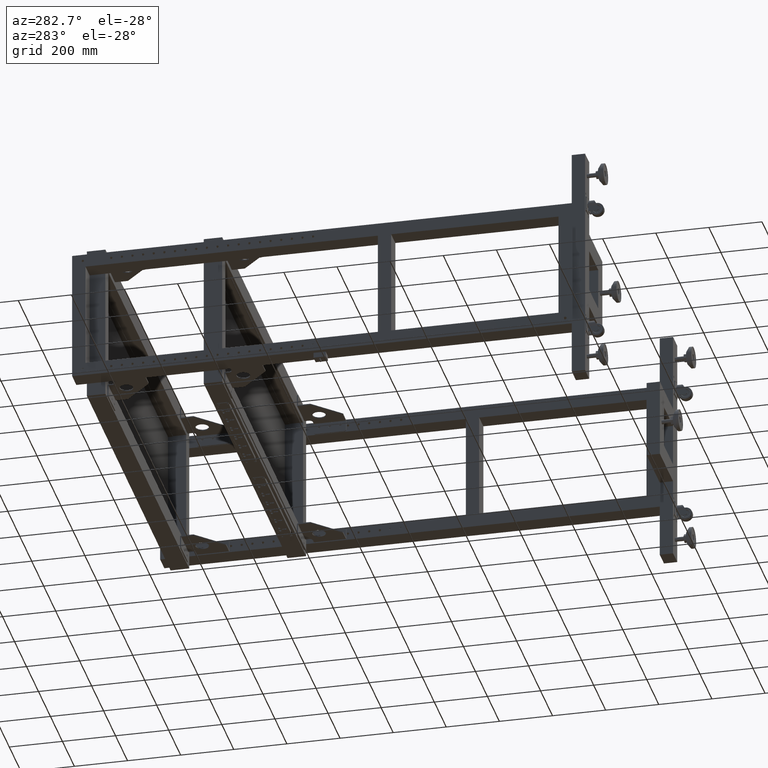
[diagram: clean part render]
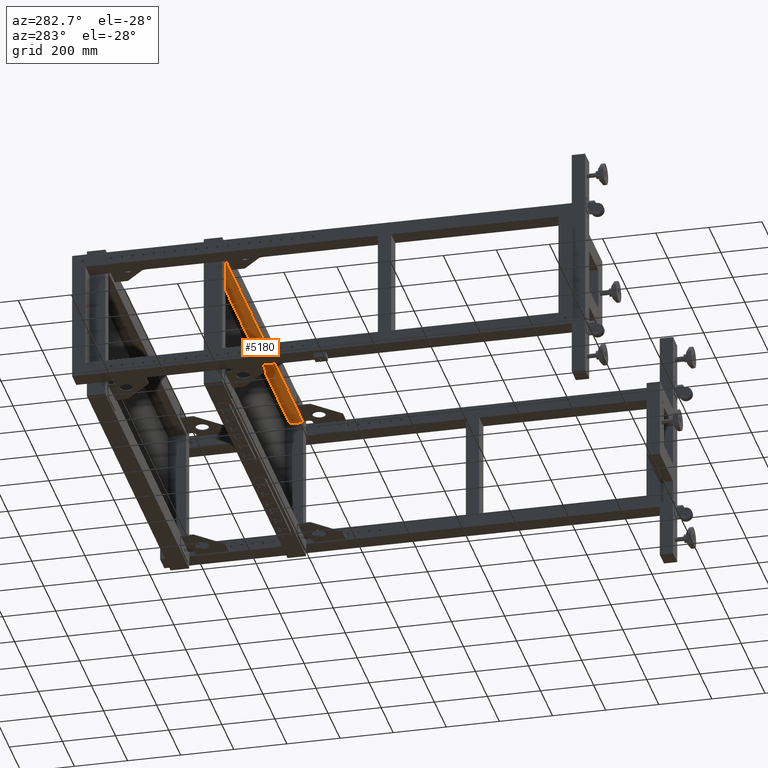
[diagram: same view with one face highlighted and labeled with its STEP entity id]
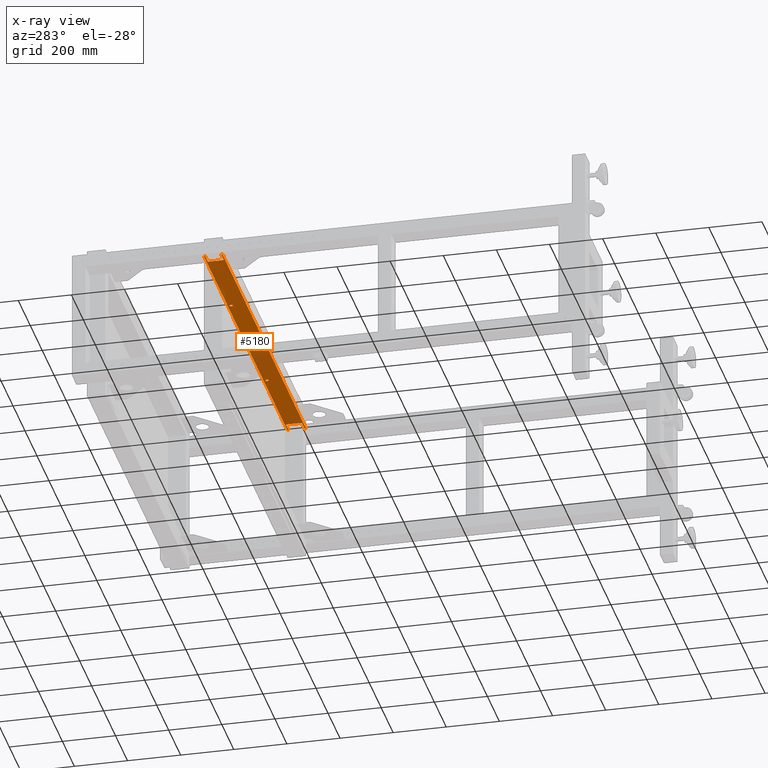
[diagram: x-ray of the same camera — body ghosted, the highlighted face saturated]
A machine part, auxiliary view. The second image highlights one B-rep face of the part: STEP entity #5180.
The next image is the same camera in x-ray: the body ghosted, the highlighted face saturated — about 15% of this face is hidden behind the body in this view.
In plain terms, the highlighted planar face has unit normal (0, -0, 1).
Its self-contained STEP definition (entity closure, byte-faithful):
#490 = VECTOR ( 'NONE', #38025, 1000.000000000000000 ) ;
#723 = VERTEX_POINT ( 'NONE', #52469 ) ;
#1201 = AXIS2_PLACEMENT_3D ( 'NONE', #20201, #44554, #2254 ) ;
#1465 = DIRECTION ( 'NONE',  ( -1.000000000000000000, -3.333709205128412982E-16, -1.864484265141417748E-31 ) ) ;
#1579 = VERTEX_POINT ( 'NONE', #62334 ) ;
#1951 = EDGE_CURVE ( 'NONE', #5114, #77922, #77193, .T. ) ;
#2254 = DIRECTION ( 'NONE',  ( 2.768038506440323819E-16, -1.000000000000000000, -3.396508223080412663E-15 ) ) ;
#2841 = VECTOR ( 'NONE', #71924, 1000.000000000000000 ) ;
#2865 = DIRECTION ( 'NONE',  ( 0.000000000000000000, 1.000000000000000000, 3.396508223080412663E-15 ) ) ;
#3459 = ORIENTED_EDGE ( 'NONE', *, *, #51995, .F. ) ;
#4889 = DIRECTION ( 'NONE',  ( -2.768038506440323819E-16, 1.000000000000000000, 3.396508223080412663E-15 ) ) ;
#5114 = VERTEX_POINT ( 'NONE', #14640 ) ;
#5180 = ADVANCED_FACE ( 'NONE', ( #58489, #75253, #50530 ), #26198, .F. ) ;
#5653 = CIRCLE ( 'NONE', #78266, 6.000000000000005329 ) ;
#6315 = VECTOR ( 'NONE', #1465, 1000.000000000000000 ) ;
#6342 = VERTEX_POINT ( 'NONE', #69790 ) ;
#6767 = CARTESIAN_POINT ( 'NONE',  ( -1266.172487437185964, 486.9410804020109822, 229.9999999999998295 ) ) ;
#7705 = LINE ( 'NONE', #26427, #55182 ) ;
#8242 = LINE ( 'NONE', #42978, #6315 ) ;
#10945 = CARTESIAN_POINT ( 'NONE',  ( -868.1724874371859642, 543.9410804020113801, 230.0000000000000284 ) ) ;
#12197 = ORIENTED_EDGE ( 'NONE', *, *, #39960, .F. ) ;
#12395 = DIRECTION ( 'NONE',  ( 9.401665548927782962E-31, -3.396508223080412663E-15, 1.000000000000000000 ) ) ;
#12981 = EDGE_CURVE ( 'NONE', #51045, #6342, #32813, .T. ) ;
#14173 = VECTOR ( 'NONE', #69640, 1000.000000000000000 ) ;
#14485 = EDGE_CURVE ( 'NONE', #34072, #1579, #5653, .T. ) ;
#14640 = CARTESIAN_POINT ( 'NONE',  ( -268.1724874371842589, 537.9410804020114938, 230.0000000000000284 ) ) ;
#15605 = CARTESIAN_POINT ( 'NONE',  ( -1266.172487437185964, 556.9410804020109254, 230.0000000000000853 ) ) ;
#17342 = VERTEX_POINT ( 'NONE', #32730 ) ;
#17468 = EDGE_CURVE ( 'NONE', #21553, #723, #8242, .T. ) ;
#19708 = EDGE_CURVE ( 'NONE', #40440, #42120, #58283, .T. ) ;
#19843 = CARTESIAN_POINT ( 'NONE',  ( 129.8275125628156559, 551.9410804020112664, 230.0000000000000568 ) ) ;
#20033 = ORIENTED_EDGE ( 'NONE', *, *, #17468, .T. ) ;
#20201 = CARTESIAN_POINT ( 'NONE',  ( -2216.172487437184373, 556.9410804020104706, 230.0000000000000853 ) ) ;
#21553 = VERTEX_POINT ( 'NONE', #19843 ) ;
#22111 = DIRECTION ( 'NONE',  ( 0.000000000000000000, 3.396508223080412663E-15, -1.000000000000000000 ) ) ;
#22618 = CARTESIAN_POINT ( 'NONE',  ( -268.1724874371842589, 549.9410804020113801, 230.0000000000000568 ) ) ;
#23869 = LINE ( 'NONE', #48209, #24054 ) ;
#24054 = VECTOR ( 'NONE', #58617, 1000.000000000000000 ) ;
#26198 = PLANE ( 'NONE',  #1201 ) ;
#26427 = CARTESIAN_POINT ( 'NONE',  ( -1266.172487437185964, 556.9410804020109254, 230.0000000000000853 ) ) ;
#26774 = CARTESIAN_POINT ( 'NONE',  ( -868.1724874371859642, 543.9410804020113801, 230.0000000000000284 ) ) ;
#27121 = DIRECTION ( 'NONE',  ( 1.000000000000000000, 2.768038506440323819E-16, 0.000000000000000000 ) ) ;
#27299 = DIRECTION ( 'NONE',  ( 0.000000000000000000, 1.000000000000000000, 4.625929269271481378E-15 ) ) ;
#28426 = LINE ( 'NONE', #63673, #74709 ) ;
#28719 = ORIENTED_EDGE ( 'NONE', *, *, #49326, .T. ) ;
#29694 = CARTESIAN_POINT ( 'NONE',  ( -1221.172487437186192, 491.9410804020110390, 229.9999999999998579 ) ) ;
#30360 = LINE ( 'NONE', #47578, #2841 ) ;
#31044 = EDGE_CURVE ( 'NONE', #21553, #17342, #28426, .T. ) ;
#31260 = CARTESIAN_POINT ( 'NONE',  ( -1221.172487437186192, 491.9410804020110390, 229.9999999999998579 ) ) ;
#31632 = CIRCLE ( 'NONE', #60989, 6.000000000000005329 ) ;
#32730 = CARTESIAN_POINT ( 'NONE',  ( 129.8275125628156559, 556.9410804020111527, 230.0000000000000853 ) ) ;
#32813 = LINE ( 'NONE', #33220, #64433 ) ;
#32878 = EDGE_CURVE ( 'NONE', #77922, #5114, #31632, .T. ) ;
#33220 = CARTESIAN_POINT ( 'NONE',  ( -2216.172487437184373, 486.9410804020105843, 229.9999999999998295 ) ) ;
#33913 = ORIENTED_EDGE ( 'NONE', *, *, #31044, .F. ) ;
#34072 = VERTEX_POINT ( 'NONE', #76467 ) ;
#34174 = ORIENTED_EDGE ( 'NONE', *, *, #65666, .T. ) ;
#34322 = CARTESIAN_POINT ( 'NONE',  ( 129.8275125628156559, 556.9410804020111527, 230.0000000000000853 ) ) ;
#34759 = ORIENTED_EDGE ( 'NONE', *, *, #12981, .F. ) ;
#35776 = LINE ( 'NONE', #60112, #490 ) ;
#36535 = EDGE_CURVE ( 'NONE', #42120, #17342, #45305, .T. ) ;
#36720 = ORIENTED_EDGE ( 'NONE', *, *, #36535, .T. ) ;
#37148 = CARTESIAN_POINT ( 'NONE',  ( -1266.172487437185964, 551.9410804020110390, 230.0000000000000568 ) ) ;
#37911 = EDGE_CURVE ( 'NONE', #50555, #43037, #55593, .T. ) ;
#38025 = DIRECTION ( 'NONE',  ( 1.000000000000000000, -5.656706986880889162E-17, -1.864484265141417748E-31 ) ) ;
#38413 = ORIENTED_EDGE ( 'NONE', *, *, #46432, .F. ) ;
#38465 = ORIENTED_EDGE ( 'NONE', *, *, #37911, .F. ) ;
#38847 = AXIS2_PLACEMENT_3D ( 'NONE', #10945, #22111, #53606 ) ;
#39106 = LINE ( 'NONE', #76170, #75394 ) ;
#39960 = EDGE_CURVE ( 'NONE', #40440, #50555, #35776, .T. ) ;
#40138 = VERTEX_POINT ( 'NONE', #44402 ) ;
#40440 = VERTEX_POINT ( 'NONE', #37148 ) ;
#42120 = VERTEX_POINT ( 'NONE', #66241 ) ;
#42328 = CARTESIAN_POINT ( 'NONE',  ( -268.1724874371842589, 543.9410804020114938, 230.0000000000000284 ) ) ;
#42545 = VERTEX_POINT ( 'NONE', #48553 ) ;
#42978 = CARTESIAN_POINT ( 'NONE',  ( 130.8275125628155422, 551.9410804020112664, 230.0000000000000568 ) ) ;
#43037 = VERTEX_POINT ( 'NONE', #31260 ) ;
#43640 = ORIENTED_EDGE ( 'NONE', *, *, #14485, .F. ) ;
#44402 = CARTESIAN_POINT ( 'NONE',  ( 84.82751256281572694, 491.9410804020111527, 229.9999999999998579 ) ) ;
#44554 = DIRECTION ( 'NONE',  ( 9.401665548927782962E-31, -3.396508223080412663E-15, 1.000000000000000000 ) ) ;
#45305 = LINE ( 'NONE', #62070, #14173 ) ;
#45527 = DIRECTION ( 'NONE',  ( 0.000000000000000000, 1.000000000000000000, 4.625929269271481378E-15 ) ) ;
#46432 = EDGE_CURVE ( 'NONE', #43037, #67901, #23869, .T. ) ;
#46478 = CIRCLE ( 'NONE', #38847, 6.000000000000005329 ) ;
#47492 = VECTOR ( 'NONE', #55202, 1000.000000000000000 ) ;
#47578 = CARTESIAN_POINT ( 'NONE',  ( 84.82751256281572694, 491.9410804020111527, 229.9999999999998579 ) ) ;
#48209 = CARTESIAN_POINT ( 'NONE',  ( -1267.172487437185964, 491.9410804020110390, 229.9999999999998579 ) ) ;
#48519 = ORIENTED_EDGE ( 'NONE', *, *, #19708, .T. ) ;
#48553 = CARTESIAN_POINT ( 'NONE',  ( 129.8275125628156559, 491.9410804020111527, 229.9999999999998579 ) ) ;
#49326 = EDGE_CURVE ( 'NONE', #723, #40138, #30360, .T. ) ;
#49608 = ORIENTED_EDGE ( 'NONE', *, *, #1951, .T. ) ;
#49926 = DIRECTION ( 'NONE',  ( 0.000000000000000000, 3.396508223080412663E-15, -1.000000000000000000 ) ) ;
#50237 = VECTOR ( 'NONE', #2865, 1000.000000000000000 ) ;
#50530 = FACE_BOUND ( 'NONE', #51711, .T. ) ;
#50555 = VERTEX_POINT ( 'NONE', #76818 ) ;
#51045 = VERTEX_POINT ( 'NONE', #6767 ) ;
#51711 = EDGE_LOOP ( 'NONE', ( #43640, #54291 ) ) ;
#51995 = EDGE_CURVE ( 'NONE', #6342, #42545, #77414, .T. ) ;
#52394 = CARTESIAN_POINT ( 'NONE',  ( -268.1724874371842589, 543.9410804020114938, 230.0000000000000284 ) ) ;
#52469 = CARTESIAN_POINT ( 'NONE',  ( 84.82751256281572694, 551.9410804020112664, 230.0000000000000568 ) ) ;
#53606 = DIRECTION ( 'NONE',  ( 0.000000000000000000, 1.000000000000000000, 4.625929269271481378E-15 ) ) ;
#54291 = ORIENTED_EDGE ( 'NONE', *, *, #69527, .F. ) ;
#55182 = VECTOR ( 'NONE', #75503, 1000.000000000000000 ) ;
#55202 = DIRECTION ( 'NONE',  ( -1.156482317317875916E-16, -1.000000000000000000, -3.396508223080412663E-15 ) ) ;
#55526 = AXIS2_PLACEMENT_3D ( 'NONE', #42328, #12395, #55844 ) ;
#55593 = LINE ( 'NONE', #29694, #47492 ) ;
#55844 = DIRECTION ( 'NONE',  ( 0.000000000000000000, 1.000000000000000000, 4.625929269271481378E-15 ) ) ;
#58283 = LINE ( 'NONE', #15605, #50237 ) ;
#58489 = FACE_BOUND ( 'NONE', #76183, .T. ) ;
#58617 = DIRECTION ( 'NONE',  ( -1.000000000000000000, -0.000000000000000000, 0.000000000000000000 ) ) ;
#60112 = CARTESIAN_POINT ( 'NONE',  ( -1267.172487437185964, 551.9410804020110390, 230.0000000000000568 ) ) ;
#60470 = CARTESIAN_POINT ( 'NONE',  ( -1266.172487437185964, 491.9410804020110390, 229.9999999999998579 ) ) ;
#60989 = AXIS2_PLACEMENT_3D ( 'NONE', #52394, #70379, #27299 ) ;
#62070 = CARTESIAN_POINT ( 'NONE',  ( -2216.172487437184373, 556.9410804020104706, 230.0000000000000853 ) ) ;
#62334 = CARTESIAN_POINT ( 'NONE',  ( -868.1724874371859642, 537.9410804020113801, 230.0000000000000284 ) ) ;
#62384 = DIRECTION ( 'NONE',  ( 1.000000000000000000, 2.768038506440323819E-16, 0.000000000000000000 ) ) ;
#63673 = CARTESIAN_POINT ( 'NONE',  ( 129.8275125628156559, 556.9410804020111527, 230.0000000000000853 ) ) ;
#64433 = VECTOR ( 'NONE', #62384, 1000.000000000000000 ) ;
#65666 = EDGE_CURVE ( 'NONE', #40138, #42545, #39106, .T. ) ;
#65857 = DIRECTION ( 'NONE',  ( -2.768038506440323819E-16, 1.000000000000000000, 3.396508223080412663E-15 ) ) ;
#66241 = CARTESIAN_POINT ( 'NONE',  ( -1266.172487437185964, 556.9410804020109254, 230.0000000000000853 ) ) ;
#66681 = VECTOR ( 'NONE', #65857, 1000.000000000000000 ) ;
#67432 = ORIENTED_EDGE ( 'NONE', *, *, #32878, .T. ) ;
#67898 = ORIENTED_EDGE ( 'NONE', *, *, #78606, .T. ) ;
#67901 = VERTEX_POINT ( 'NONE', #60470 ) ;
#69527 = EDGE_CURVE ( 'NONE', #1579, #34072, #46478, .T. ) ;
#69640 = DIRECTION ( 'NONE',  ( 1.000000000000000000, 2.768038506440323819E-16, 0.000000000000000000 ) ) ;
#69790 = CARTESIAN_POINT ( 'NONE',  ( 129.8275125628156559, 486.9410804020111527, 229.9999999999998295 ) ) ;
#70379 = DIRECTION ( 'NONE',  ( 9.401665548927782962E-31, -3.396508223080412663E-15, 1.000000000000000000 ) ) ;
#71924 = DIRECTION ( 'NONE',  ( 3.924520823758199981E-16, -1.000000000000000000, -3.396508223080412663E-15 ) ) ;
#74709 = VECTOR ( 'NONE', #4889, 1000.000000000000000 ) ;
#75253 = FACE_OUTER_BOUND ( 'NONE', #76473, .T. ) ;
#75394 = VECTOR ( 'NONE', #27121, 1000.000000000000000 ) ;
#75503 = DIRECTION ( 'NONE',  ( 0.000000000000000000, 1.000000000000000000, 3.396508223080412663E-15 ) ) ;
#76170 = CARTESIAN_POINT ( 'NONE',  ( 130.8275125628155422, 491.9410804020111527, 229.9999999999998579 ) ) ;
#76183 = EDGE_LOOP ( 'NONE', ( #67432, #49608 ) ) ;
#76467 = CARTESIAN_POINT ( 'NONE',  ( -868.1724874371859642, 549.9410804020112664, 230.0000000000000568 ) ) ;
#76473 = EDGE_LOOP ( 'NONE', ( #34759, #67898, #38413, #38465, #12197, #48519, #36720, #33913, #20033, #28719, #34174, #3459 ) ) ;
#76818 = CARTESIAN_POINT ( 'NONE',  ( -1221.172487437186192, 551.9410804020110390, 230.0000000000000568 ) ) ;
#77193 = CIRCLE ( 'NONE', #55526, 6.000000000000005329 ) ;
#77414 = LINE ( 'NONE', #34322, #66681 ) ;
#77922 = VERTEX_POINT ( 'NONE', #22618 ) ;
#78266 = AXIS2_PLACEMENT_3D ( 'NONE', #26774, #49926, #45527 ) ;
#78606 = EDGE_CURVE ( 'NONE', #51045, #67901, #7705, .T. ) ;